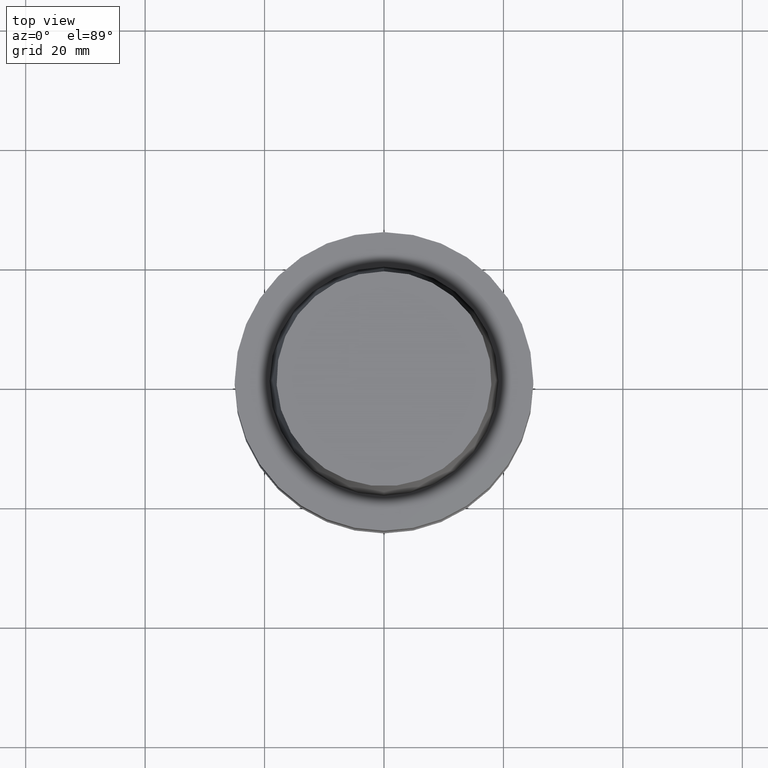
[diagram: clean part render]
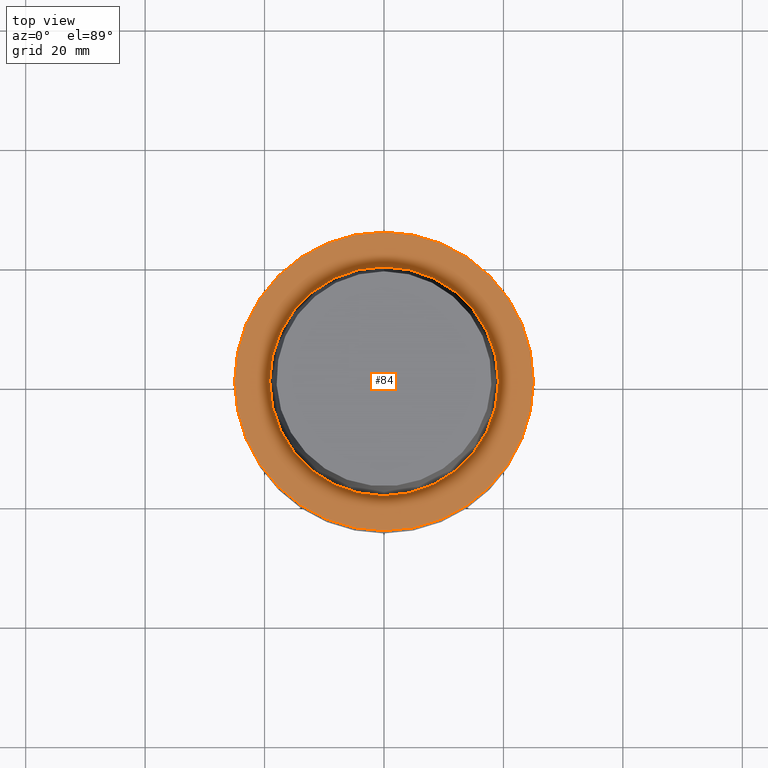
[diagram: same view with one face highlighted and labeled with its STEP entity id]
A machine part, top view. The second image highlights one B-rep face of the part: STEP entity #84.
In plain terms, the highlighted planar face has unit normal (-0, -0, 1).
Its self-contained STEP definition (entity closure, byte-faithful):
#84=ADVANCED_FACE('',(#120,#121),#122,.T.);
#120=FACE_OUTER_BOUND('',#175,.T.);
#121=FACE_BOUND('',#176,.T.);
#122=PLANE('',#177);
#175=EDGE_LOOP('',(#248));
#176=EDGE_LOOP('',(#249));
#177=AXIS2_PLACEMENT_3D('',#250,#251,#252);
#248=ORIENTED_EDGE('',*,*,#307,.F.);
#249=ORIENTED_EDGE('',*,*,#306,.T.);
#250=CARTESIAN_POINT('',(-2.72095382543029E-031,22.075,2.70340780911778E-015));
#251=DIRECTION('',(-6.12323399573677E-017,-1.22464679914735E-016,1.0));
#252=DIRECTION('',(1.23259516440783E-032,-1.0,-1.22464679914735E-016));
#306=EDGE_CURVE('',#332,#332,#333,.T.);
#307=EDGE_CURVE('',#334,#334,#335,.T.);
#332=VERTEX_POINT('',#368);
#333=CIRCLE('',#369,19.15);
#334=VERTEX_POINT('',#370);
#335=CIRCLE('',#371,25.0);
#368=CARTESIAN_POINT('',(-2.360419739841E-031,19.15,2.34519862036718E-015));
#369=AXIS2_PLACEMENT_3D('',#412,#413,#414);
#370=CARTESIAN_POINT('',(-3.08148791101958E-031,25.0,3.06161699786838E-015));
#371=AXIS2_PLACEMENT_3D('',#415,#416,#417);
#412=CARTESIAN_POINT('',(0.0,0.0,0.0));
#413=DIRECTION('',(6.12323399573677E-017,1.22464679914735E-016,-1.0));
#414=DIRECTION('',(-1.23259516440783E-032,1.0,1.22464679914735E-016));
#415=CARTESIAN_POINT('',(0.0,0.0,0.0));
#416=DIRECTION('',(6.12323399573677E-017,1.22464679914735E-016,-1.0));
#417=DIRECTION('',(-1.23259516440783E-032,1.0,1.22464679914735E-016));